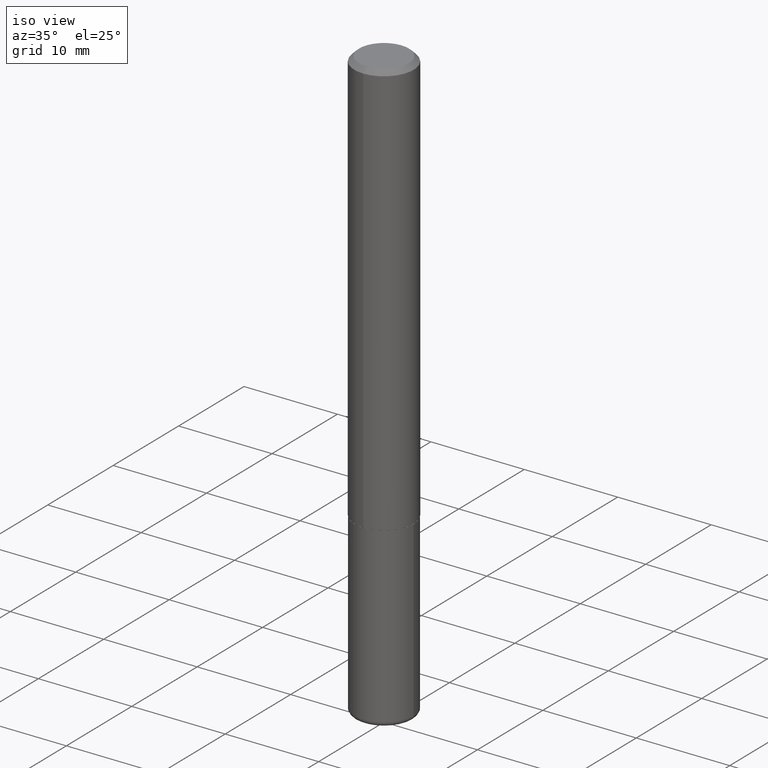
[diagram: clean part render]
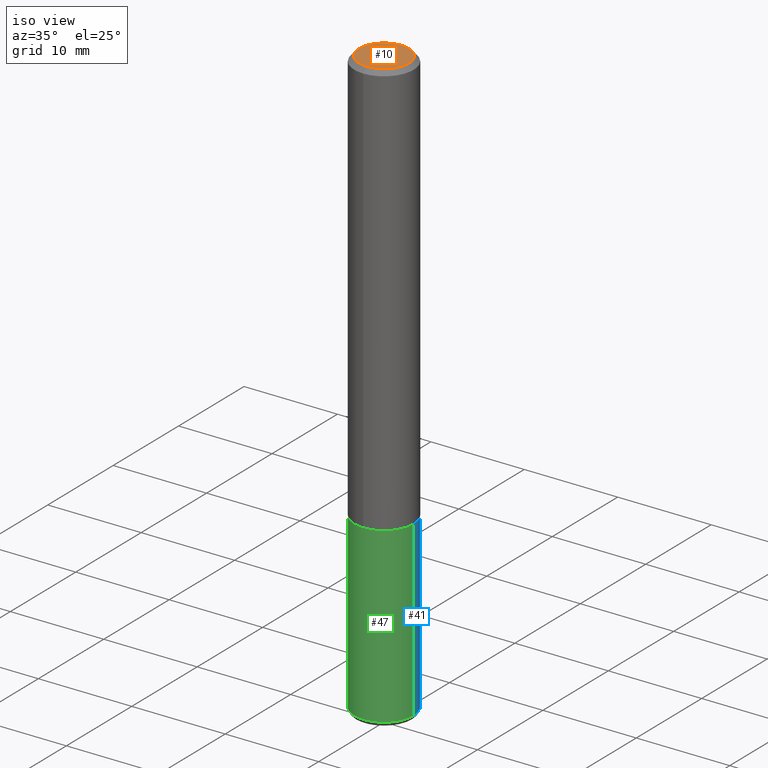
[diagram: same view with three faces highlighted in distinct colors, each labeled with its STEP entity id]
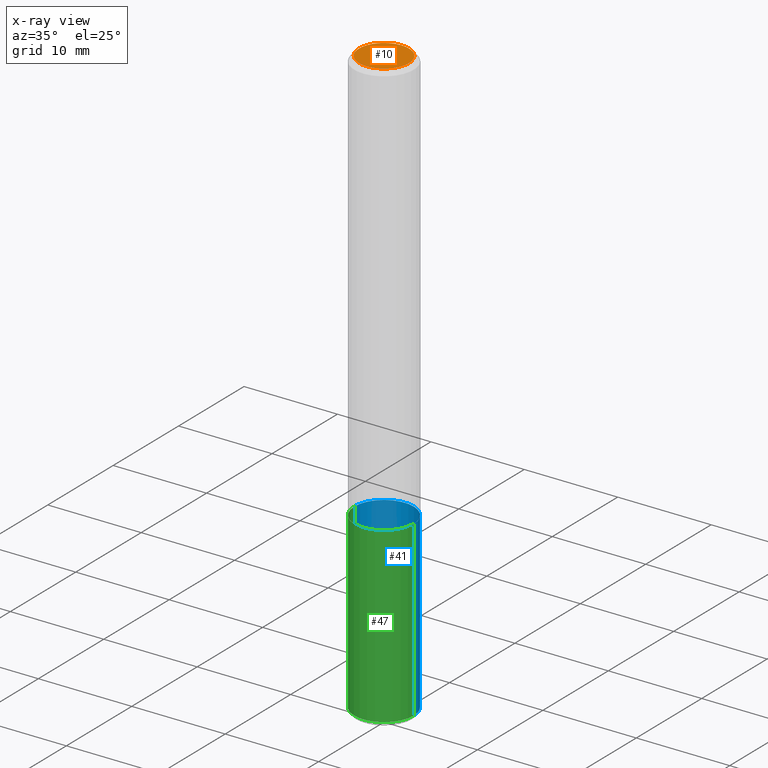
[diagram: x-ray of the same camera — body ghosted, the three highlighted faces saturated]
A machine part, iso view with three faces highlighted in distinct colors.
The next image is the same camera in x-ray (body ghosted, the three faces saturated) — at least one of them is partly hidden behind the body in this view.
Their STEP definitions:

[orange] entity #10 — the highlighted planar face has unit normal (0, -0, -1).
#5 = CARTESIAN_POINT ( 'NONE',  ( 7.332110811570574327E-16, 0.1049999999999999267, -3.217228881981931301E-16 ) ) ;
#10 = ADVANCED_FACE ( 'NONE', ( #376 ), #301, .F. ) ;
#11 = DIRECTION ( 'NONE',  ( 6.982962677686265922E-15, 1.000000000000000000, -3.490276172475858378E-15 ) ) ;
#20 = DIRECTION ( 'NONE',  ( -6.982962677686265922E-15, -1.000000000000000000, 3.490276172475858378E-15 ) ) ;
#33 = AXIS2_PLACEMENT_3D ( 'NONE', #415, #127, #20 ) ;
#82 = ORIENTED_EDGE ( 'NONE', *, *, #169, .T. ) ;
#105 = AXIS2_PLACEMENT_3D ( 'NONE', #5, #399, #11 ) ;
#116 = EDGE_CURVE ( 'NONE', #266, #401, #293, .T. ) ;
#127 = DIRECTION ( 'NONE',  ( -2.446310369361453361E-29, 3.490276172475858772E-15, 1.000000000000000000 ) ) ;
#169 = EDGE_CURVE ( 'NONE', #401, #266, #324, .T. ) ;
#192 = CARTESIAN_POINT ( 'NONE',  ( -2.189746715388963618E-45, 3.124223679955351557E-31, 8.951221982354351893E-17 ) ) ;
#254 = CARTESIAN_POINT ( 'NONE',  ( -7.889572697437255223E-16, -0.1049999999999999267, 4.559912179335083715E-16 ) ) ;
#266 = VERTEX_POINT ( 'NONE', #254 ) ;
#272 = CARTESIAN_POINT ( 'NONE',  ( 8.030407079339205337E-16, 0.1049999999999999267, -2.769667782864213337E-16 ) ) ;
#285 = DIRECTION ( 'NONE',  ( -2.446310369361453361E-29, 3.490276172475858772E-15, 1.000000000000000000 ) ) ;
#293 = CIRCLE ( 'NONE', #352, 0.1049999999999999267 ) ;
#301 = PLANE ( 'NONE',  #105 ) ;
#320 = DIRECTION ( 'NONE',  ( -6.982962677686265922E-15, -1.000000000000000000, 3.490276172475858378E-15 ) ) ;
#324 = CIRCLE ( 'NONE', #33, 0.1049999999999999267 ) ;
#327 = ORIENTED_EDGE ( 'NONE', *, *, #116, .T. ) ;
#352 = AXIS2_PLACEMENT_3D ( 'NONE', #192, #285, #320 ) ;
#368 = EDGE_LOOP ( 'NONE', ( #82, #327 ) ) ;
#376 = FACE_OUTER_BOUND ( 'NONE', #368, .T. ) ;
#399 = DIRECTION ( 'NONE',  ( 2.446310369361453080E-29, -3.490276172475858378E-15, -1.000000000000000000 ) ) ;
#401 = VERTEX_POINT ( 'NONE', #272 ) ;
#415 = CARTESIAN_POINT ( 'NONE',  ( -2.189746715388963618E-45, 3.124223679955351557E-31, 8.951221982354351893E-17 ) ) ;

[blue] entity #41 — the highlighted cylindrical surface (edge-blend (fillet) strip) has radius 3.175 mm, axis along (-0, 0, 1).
#12 = ORIENTED_EDGE ( 'NONE', *, *, #198, .T. ) ;
#38 = LINE ( 'NONE', #197, #417 ) ;
#41 = ADVANCED_FACE ( 'NONE', ( #154 ), #87, .T. ) ;
#43 = CARTESIAN_POINT ( 'NONE',  ( -0.1250000000000000000, -6.496304611953128320E-15, -1.750000000000000222 ) ) ;
#49 = VERTEX_POINT ( 'NONE', #379 ) ;
#77 = ORIENTED_EDGE ( 'NONE', *, *, #275, .F. ) ;
#80 = ORIENTED_EDGE ( 'NONE', *, *, #217, .T. ) ;
#81 = CARTESIAN_POINT ( 'NONE',  ( 0.1250000000000000555, -9.531744055041784983E-15, -2.480000000000000426 ) ) ;
#87 = CYLINDRICAL_SURFACE ( 'NONE', #330, 0.1250000000000000000 ) ;
#88 = AXIS2_PLACEMENT_3D ( 'NONE', #130, #98, #360 ) ;
#98 = DIRECTION ( 'NONE',  ( -2.445468806185136597E-29, 3.491481338843145583E-15, 1.000000000000000000 ) ) ;
#130 = CARTESIAN_POINT ( 'NONE',  ( 6.064762639339139522E-29, -8.658873720331001644E-15, -2.480000000000000426 ) ) ;
#140 = EDGE_CURVE ( 'NONE', #308, #263, #199, .T. ) ;
#142 = CARTESIAN_POINT ( 'NONE',  ( 0.1250000000000000000, -6.982962677686288010E-15, -1.750000000000000222 ) ) ;
#154 = FACE_OUTER_BOUND ( 'NONE', #201, .T. ) ;
#172 = LINE ( 'NONE', #296, #200 ) ;
#187 = CARTESIAN_POINT ( 'NONE',  ( 0.000000000000000000, 0.000000000000000000, 0.000000000000000000 ) ) ;
#197 = CARTESIAN_POINT ( 'NONE',  ( -0.1250000000000000000, 8.881784197001252323E-16, -6.148668862818632227E-30 ) ) ;
#198 = EDGE_CURVE ( 'NONE', #49, #263, #38, .T. ) ;
#199 = CIRCLE ( 'NONE', #247, 0.1250000000000000000 ) ;
#200 = VECTOR ( 'NONE', #322, 39.37007874015748143 ) ;
#201 = EDGE_LOOP ( 'NONE', ( #80, #12, #297, #77 ) ) ;
#217 = EDGE_CURVE ( 'NONE', #290, #49, #265, .T. ) ;
#247 = AXIS2_PLACEMENT_3D ( 'NONE', #385, #413, #321 ) ;
#263 = VERTEX_POINT ( 'NONE', #43 ) ;
#265 = CIRCLE ( 'NONE', #88, 0.1249999999999999861 ) ;
#275 = EDGE_CURVE ( 'NONE', #290, #308, #172, .T. ) ;
#288 = DIRECTION ( 'NONE',  ( -2.445468806185136877E-29, 3.491481338843145188E-15, 1.000000000000000000 ) ) ;
#290 = VERTEX_POINT ( 'NONE', #81 ) ;
#296 = CARTESIAN_POINT ( 'NONE',  ( 0.1250000000000000000, -8.728703347107833388E-16, 6.095220969744919741E-30 ) ) ;
#297 = ORIENTED_EDGE ( 'NONE', *, *, #140, .F. ) ;
#308 = VERTEX_POINT ( 'NONE', #142 ) ;
#312 = DIRECTION ( 'NONE',  ( 1.000000000000000000, -6.982962677686266711E-15, 4.876176775795935793E-29 ) ) ;
#321 = DIRECTION ( 'NONE',  ( 1.000000000000000000, -6.982962677686262766E-15, 0.000000000000000000 ) ) ;
#322 = DIRECTION ( 'NONE',  ( -2.445468806185136877E-29, 3.491481338843145188E-15, 1.000000000000000000 ) ) ;
#330 = AXIS2_PLACEMENT_3D ( 'NONE', #187, #378, #312 ) ;
#360 = DIRECTION ( 'NONE',  ( 1.000000000000000000, -6.982962677686263555E-15, 0.000000000000000000 ) ) ;
#378 = DIRECTION ( 'NONE',  ( -2.445468806185136597E-29, 3.491481338843145583E-15, 1.000000000000000000 ) ) ;
#379 = CARTESIAN_POINT ( 'NONE',  ( -0.1250000000000000555, -7.770695300630876412E-15, -2.480000000000000426 ) ) ;
#385 = CARTESIAN_POINT ( 'NONE',  ( 4.279570410823989044E-29, -6.110092342975505460E-15, -1.750000000000000222 ) ) ;
#413 = DIRECTION ( 'NONE',  ( -2.445468806185136597E-29, 3.491481338843145583E-15, 1.000000000000000000 ) ) ;
#417 = VECTOR ( 'NONE', #288, 39.37007874015748143 ) ;

[green] entity #47 — the highlighted cylindrical surface (edge-blend (fillet) strip) has radius 3.175 mm, axis along (-0, 0, 1).
#4 = ORIENTED_EDGE ( 'NONE', *, *, #275, .T. ) ;
#38 = LINE ( 'NONE', #197, #417 ) ;
#43 = CARTESIAN_POINT ( 'NONE',  ( -0.1250000000000000000, -6.496304611953128320E-15, -1.750000000000000222 ) ) ;
#44 = ORIENTED_EDGE ( 'NONE', *, *, #359, .F. ) ;
#47 = ADVANCED_FACE ( 'NONE', ( #346 ), #248, .T. ) ;
#49 = VERTEX_POINT ( 'NONE', #379 ) ;
#65 = DIRECTION ( 'NONE',  ( 1.000000000000000000, -6.982962677686263555E-15, 0.000000000000000000 ) ) ;
#69 = CIRCLE ( 'NONE', #155, 0.1250000000000000000 ) ;
#74 = ORIENTED_EDGE ( 'NONE', *, *, #216, .T. ) ;
#78 = CARTESIAN_POINT ( 'NONE',  ( 4.279570410823989044E-29, -6.110092342975505460E-15, -1.750000000000000222 ) ) ;
#81 = CARTESIAN_POINT ( 'NONE',  ( 0.1250000000000000555, -9.531744055041784983E-15, -2.480000000000000426 ) ) ;
#121 = AXIS2_PLACEMENT_3D ( 'NONE', #123, #221, #190 ) ;
#123 = CARTESIAN_POINT ( 'NONE',  ( 0.000000000000000000, 0.000000000000000000, 0.000000000000000000 ) ) ;
#138 = EDGE_LOOP ( 'NONE', ( #228, #74, #4, #44 ) ) ;
#142 = CARTESIAN_POINT ( 'NONE',  ( 0.1250000000000000000, -6.982962677686288010E-15, -1.750000000000000222 ) ) ;
#155 = AXIS2_PLACEMENT_3D ( 'NONE', #78, #243, #372 ) ;
#165 = CARTESIAN_POINT ( 'NONE',  ( 6.064762639339139522E-29, -8.658873720331001644E-15, -2.480000000000000426 ) ) ;
#172 = LINE ( 'NONE', #296, #200 ) ;
#190 = DIRECTION ( 'NONE',  ( 1.000000000000000000, -6.982962677686266711E-15, 4.876176775795935793E-29 ) ) ;
#197 = CARTESIAN_POINT ( 'NONE',  ( -0.1250000000000000000, 8.881784197001252323E-16, -6.148668862818632227E-30 ) ) ;
#198 = EDGE_CURVE ( 'NONE', #49, #263, #38, .T. ) ;
#200 = VECTOR ( 'NONE', #322, 39.37007874015748143 ) ;
#216 = EDGE_CURVE ( 'NONE', #49, #290, #344, .T. ) ;
#221 = DIRECTION ( 'NONE',  ( -2.445468806185136597E-29, 3.491481338843145583E-15, 1.000000000000000000 ) ) ;
#228 = ORIENTED_EDGE ( 'NONE', *, *, #198, .F. ) ;
#243 = DIRECTION ( 'NONE',  ( -2.445468806185136597E-29, 3.491481338843145583E-15, 1.000000000000000000 ) ) ;
#248 = CYLINDRICAL_SURFACE ( 'NONE', #121, 0.1250000000000000000 ) ;
#257 = DIRECTION ( 'NONE',  ( -2.445468806185136597E-29, 3.491481338843145583E-15, 1.000000000000000000 ) ) ;
#263 = VERTEX_POINT ( 'NONE', #43 ) ;
#275 = EDGE_CURVE ( 'NONE', #290, #308, #172, .T. ) ;
#288 = DIRECTION ( 'NONE',  ( -2.445468806185136877E-29, 3.491481338843145188E-15, 1.000000000000000000 ) ) ;
#290 = VERTEX_POINT ( 'NONE', #81 ) ;
#296 = CARTESIAN_POINT ( 'NONE',  ( 0.1250000000000000000, -8.728703347107833388E-16, 6.095220969744919741E-30 ) ) ;
#308 = VERTEX_POINT ( 'NONE', #142 ) ;
#322 = DIRECTION ( 'NONE',  ( -2.445468806185136877E-29, 3.491481338843145188E-15, 1.000000000000000000 ) ) ;
#344 = CIRCLE ( 'NONE', #380, 0.1249999999999999861 ) ;
#346 = FACE_OUTER_BOUND ( 'NONE', #138, .T. ) ;
#359 = EDGE_CURVE ( 'NONE', #263, #308, #69, .T. ) ;
#372 = DIRECTION ( 'NONE',  ( 1.000000000000000000, -6.982962677686262766E-15, 0.000000000000000000 ) ) ;
#379 = CARTESIAN_POINT ( 'NONE',  ( -0.1250000000000000555, -7.770695300630876412E-15, -2.480000000000000426 ) ) ;
#380 = AXIS2_PLACEMENT_3D ( 'NONE', #165, #257, #65 ) ;
#417 = VECTOR ( 'NONE', #288, 39.37007874015748143 ) ;